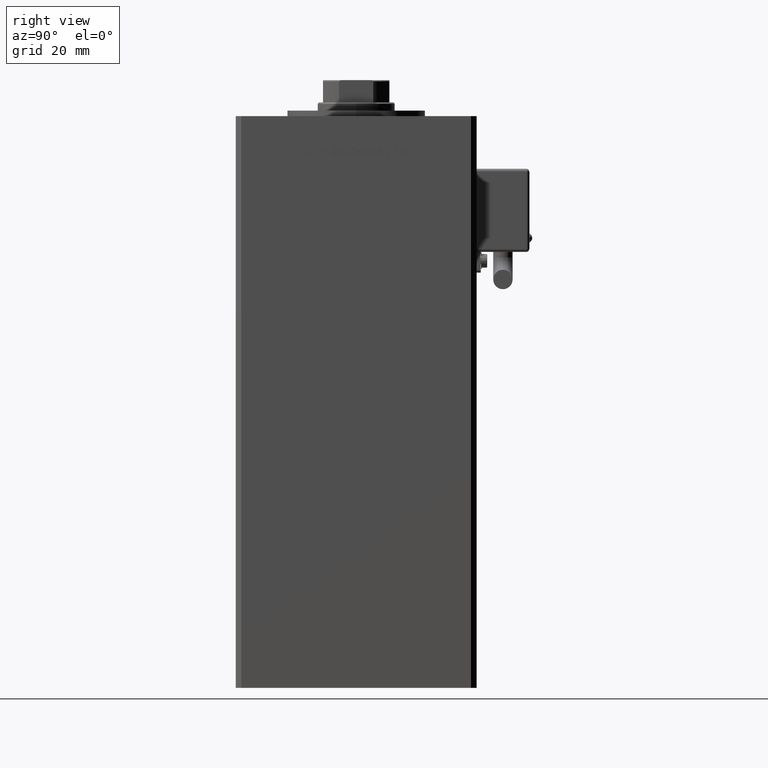
[diagram: clean part render]
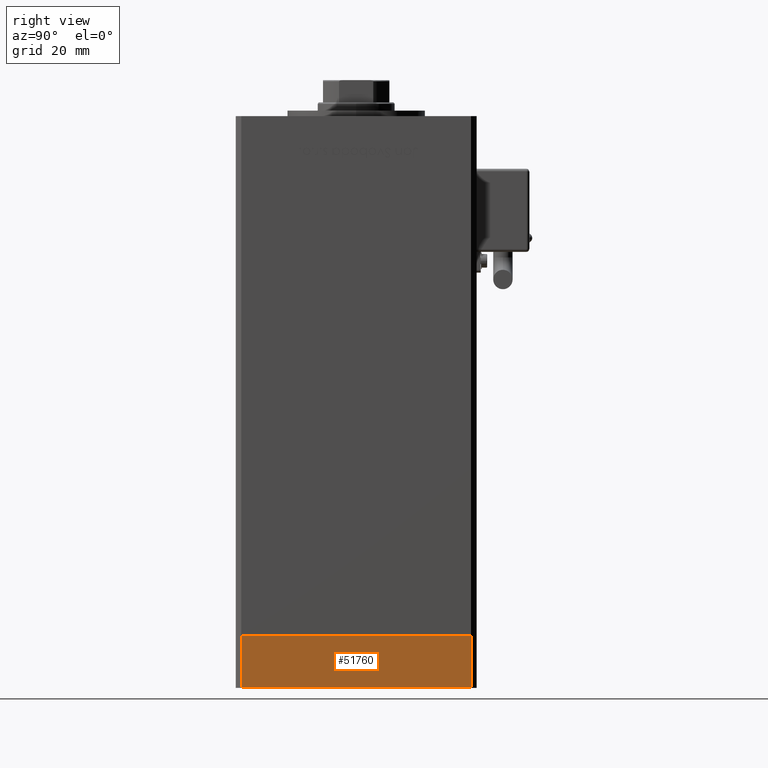
[diagram: same view with one face highlighted and labeled with its STEP entity id]
A machine part, right view. The second image highlights one B-rep face of the part: STEP entity #51760.
In plain terms, the highlighted planar face has unit normal (1, -0, 0).
Its self-contained STEP definition (entity closure, byte-faithful):
#1498 = LINE ( 'NONE', #40272, #25925 ) ;
#2169 = ORIENTED_EDGE ( 'NONE', *, *, #16777, .F. ) ;
#2210 = CARTESIAN_POINT ( 'NONE',  ( -50.00000000000000711, 41.49999999999995026, -19.00000000000000000 ) ) ;
#2867 = ORIENTED_EDGE ( 'NONE', *, *, #26415, .F. ) ;
#4672 = VERTEX_POINT ( 'NONE', #17127 ) ;
#4733 = VERTEX_POINT ( 'NONE', #50034 ) ;
#6130 = CARTESIAN_POINT ( 'NONE',  ( -50.00000000000000000, -41.50000000000000000, -19.00000000000000000 ) ) ;
#6852 = CARTESIAN_POINT ( 'NONE',  ( -50.00000000000000711, 41.49999999999995026, 0.000000000000000000 ) ) ;
#6947 = DIRECTION ( 'NONE',  ( 0.000000000000000000, 0.000000000000000000, 1.000000000000000000 ) ) ;
#11148 = LINE ( 'NONE', #6130, #52000 ) ;
#12852 = LINE ( 'NONE', #13408, #49117 ) ;
#13408 = CARTESIAN_POINT ( 'NONE',  ( -50.00000000000000711, 41.49999999999995026, -19.00000000000000000 ) ) ;
#13806 = DIRECTION ( 'NONE',  ( 0.000000000000000000, 0.000000000000000000, 1.000000000000000000 ) ) ;
#15706 = VERTEX_POINT ( 'NONE', #29371 ) ;
#16777 = EDGE_CURVE ( 'NONE', #4672, #31246, #1498, .T. ) ;
#17080 = ORIENTED_EDGE ( 'NONE', *, *, #18181, .T. ) ;
#17127 = CARTESIAN_POINT ( 'NONE',  ( -50.00000000000000711, 41.49999999999995026, -19.00000000000000000 ) ) ;
#17199 = VECTOR ( 'NONE', #24427, 1000.000000000000000 ) ;
#18181 = EDGE_CURVE ( 'NONE', #4672, #15706, #12852, .T. ) ;
#20079 = ORIENTED_EDGE ( 'NONE', *, *, #28953, .T. ) ;
#21101 = DIRECTION ( 'NONE',  ( 8.360113137237628665E-17, -1.000000000000000000, 0.000000000000000000 ) ) ;
#24142 = CARTESIAN_POINT ( 'NONE',  ( -50.00000000000000711, 41.49999999999995026, 0.000000000000000000 ) ) ;
#24427 = DIRECTION ( 'NONE',  ( 8.360113137237628665E-17, -1.000000000000000000, 0.000000000000000000 ) ) ;
#25925 = VECTOR ( 'NONE', #13806, 1000.000000000000000 ) ;
#26415 = EDGE_CURVE ( 'NONE', #31246, #4733, #44780, .T. ) ;
#28953 = EDGE_CURVE ( 'NONE', #15706, #4733, #11148, .T. ) ;
#29371 = CARTESIAN_POINT ( 'NONE',  ( -50.00000000000000000, -41.50000000000000000, -19.00000000000000000 ) ) ;
#29741 = PLANE ( 'NONE',  #39931 ) ;
#30688 = DIRECTION ( 'NONE',  ( 8.360113137237628665E-17, -1.000000000000000000, 0.000000000000000000 ) ) ;
#31246 = VERTEX_POINT ( 'NONE', #24142 ) ;
#39931 = AXIS2_PLACEMENT_3D ( 'NONE', #2210, #49072, #21101 ) ;
#40272 = CARTESIAN_POINT ( 'NONE',  ( -50.00000000000000711, 41.49999999999995026, -19.00000000000000000 ) ) ;
#44780 = LINE ( 'NONE', #6852, #17199 ) ;
#46684 = EDGE_LOOP ( 'NONE', ( #2867, #2169, #17080, #20079 ) ) ;
#49072 = DIRECTION ( 'NONE',  ( -1.000000000000000000, -8.360113137237628665E-17, 0.000000000000000000 ) ) ;
#49117 = VECTOR ( 'NONE', #30688, 1000.000000000000000 ) ;
#50034 = CARTESIAN_POINT ( 'NONE',  ( -50.00000000000000000, -41.50000000000000000, 0.000000000000000000 ) ) ;
#51760 = ADVANCED_FACE ( 'NONE', ( #54274 ), #29741, .T. ) ;
#52000 = VECTOR ( 'NONE', #6947, 1000.000000000000000 ) ;
#54274 = FACE_OUTER_BOUND ( 'NONE', #46684, .T. ) ;